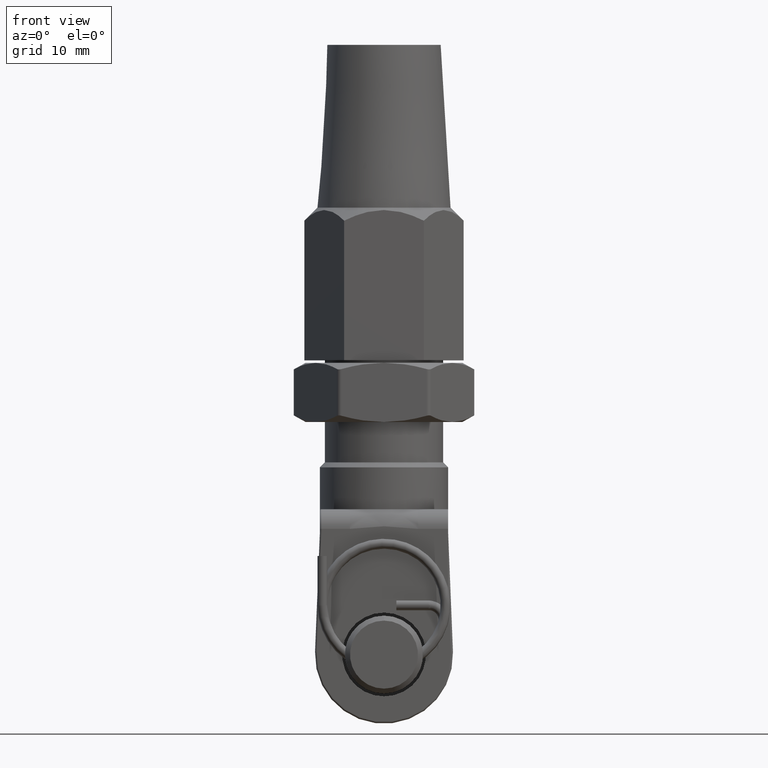
[diagram: clean part render]
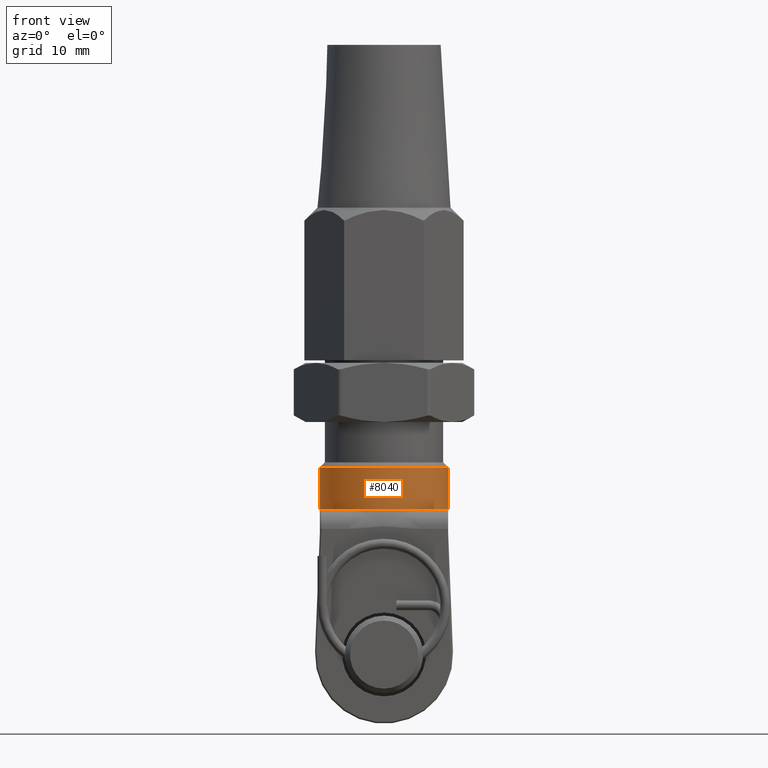
[diagram: same view with one face highlighted and labeled with its STEP entity id]
A machine part, front view. The second image highlights one B-rep face of the part: STEP entity #8040.
In plain terms, the highlighted cylindrical surface (bore or boss wall) has radius 6.5 mm, axis along (0, 0, 1).
Its self-contained STEP definition (entity closure, byte-faithful):
#129 = AXIS2_PLACEMENT_3D ( 'NONE', #4144, #2576, #14718 ) ;
#899 = ORIENTED_EDGE ( 'NONE', *, *, #12541, .T. ) ;
#979 = AXIS2_PLACEMENT_3D ( 'NONE', #13450, #16790, #6507 ) ;
#1039 = ORIENTED_EDGE ( 'NONE', *, *, #13148, .T. ) ;
#1057 = CIRCLE ( 'NONE', #10401, 6.500000000000000900 ) ;
#1387 = ORIENTED_EDGE ( 'NONE', *, *, #22471, .T. ) ;
#1877 = DIRECTION ( 'NONE',  ( 1.000000000000000000, 0.0000000000000000000, 0.0000000000000000000 ) ) ;
#2522 = ORIENTED_EDGE ( 'NONE', *, *, #5515, .T. ) ;
#2576 = DIRECTION ( 'NONE',  ( -0.0000000000000000000, 0.0000000000000000000, 1.000000000000000000 ) ) ;
#3058 = EDGE_CURVE ( 'NONE', #13854, #19759, #6603, .T. ) ;
#3168 = VERTEX_POINT ( 'NONE', #15457 ) ;
#3430 = DIRECTION ( 'NONE',  ( 1.000000000000000000, 0.0000000000000000000, 0.0000000000000000000 ) ) ;
#3501 = FACE_OUTER_BOUND ( 'NONE', #7865, .T. ) ;
#3844 = AXIS2_PLACEMENT_3D ( 'NONE', #13321, #4621, #8292 ) ;
#3858 = EDGE_CURVE ( 'NONE', #13593, #13593, #4410, .T. ) ;
#4031 = VERTEX_POINT ( 'NONE', #16116 ) ;
#4144 = CARTESIAN_POINT ( 'NONE',  ( 0.0000000000000000000, 0.0000000000000000000, -4.250000000000000000 ) ) ;
#4410 = CIRCLE ( 'NONE', #7748, 6.500000000000000900 ) ;
#4552 = EDGE_CURVE ( 'NONE', #7910, #22515, #9595, .T. ) ;
#4621 = DIRECTION ( 'NONE',  ( -0.0000000000000000000, -0.0000000000000000000, 1.000000000000000000 ) ) ;
#4657 = CARTESIAN_POINT ( 'NONE',  ( -6.500000000000000900, 0.0000000000000000000, 0.0000000000000000000 ) ) ;
#5089 = CARTESIAN_POINT ( 'NONE',  ( -6.500000000000000900, 0.0000000000000000000, -4.250000000000000000 ) ) ;
#5515 = EDGE_CURVE ( 'NONE', #3168, #4031, #1057, .T. ) ;
#5643 = CARTESIAN_POINT ( 'NONE',  ( 0.0000000000000000000, 0.0000000000000000000, -4.250000000000000000 ) ) ;
#5845 = DIRECTION ( 'NONE',  ( -0.0000000000000000000, 0.0000000000000000000, 1.000000000000000000 ) ) ;
#6507 = DIRECTION ( 'NONE',  ( 1.000000000000000000, 0.0000000000000000000, 0.0000000000000000000 ) ) ;
#6603 = CIRCLE ( 'NONE', #7311, 6.500000000000000900 ) ;
#6796 = DIRECTION ( 'NONE',  ( -0.0000000000000000000, 0.0000000000000000000, 1.000000000000000000 ) ) ;
#6812 = CIRCLE ( 'NONE', #979, 6.500000000000000900 ) ;
#7184 = AXIS2_PLACEMENT_3D ( 'NONE', #7592, #5845, #8981 ) ;
#7311 = AXIS2_PLACEMENT_3D ( 'NONE', #8611, #16984, #15314 ) ;
#7380 = AXIS2_PLACEMENT_3D ( 'NONE', #7384, #21154, #12720 ) ;
#7384 = CARTESIAN_POINT ( 'NONE',  ( 0.0000000000000000000, 0.0000000000000000000, -4.250000000000000000 ) ) ;
#7553 = DIRECTION ( 'NONE',  ( -0.0000000000000000000, 0.0000000000000000000, 1.000000000000000000 ) ) ;
#7592 = CARTESIAN_POINT ( 'NONE',  ( 0.0000000000000000000, 0.0000000000000000000, -4.250000000000000000 ) ) ;
#7748 = AXIS2_PLACEMENT_3D ( 'NONE', #10643, #12448, #12379 ) ;
#7865 = EDGE_LOOP ( 'NONE', ( #17156 ) ) ;
#7910 = VERTEX_POINT ( 'NONE', #12877 ) ;
#7989 = EDGE_LOOP ( 'NONE', ( #17180, #19079, #2522, #1387, #899, #12123, #1039, #11479 ) ) ;
#8040 = ADVANCED_FACE ( 'NONE', ( #22026, #3501 ), #16569, .T. ) ;
#8292 = DIRECTION ( 'NONE',  ( 1.000000000000000000, 0.0000000000000000000, 0.0000000000000000000 ) ) ;
#8611 = CARTESIAN_POINT ( 'NONE',  ( 0.0000000000000000000, 0.0000000000000000000, -4.250000000000000000 ) ) ;
#8755 = DIRECTION ( 'NONE',  ( -0.0000000000000000000, 0.0000000000000000000, 1.000000000000000000 ) ) ;
#8961 = CIRCLE ( 'NONE', #129, 6.500000000000000900 ) ;
#8981 = DIRECTION ( 'NONE',  ( 1.000000000000000000, 0.0000000000000000000, 0.0000000000000000000 ) ) ;
#9011 = VERTEX_POINT ( 'NONE', #20356 ) ;
#9316 = VERTEX_POINT ( 'NONE', #18210 ) ;
#9397 = CARTESIAN_POINT ( 'NONE',  ( -3.464101615137756600, 5.500000000000000000, -4.250000000000000000 ) ) ;
#9595 = CIRCLE ( 'NONE', #7184, 6.500000000000000900 ) ;
#10401 = AXIS2_PLACEMENT_3D ( 'NONE', #15563, #6796, #3430 ) ;
#10576 = CARTESIAN_POINT ( 'NONE',  ( 0.0000000000000000000, 0.0000000000000000000, -4.250000000000000000 ) ) ;
#10643 = CARTESIAN_POINT ( 'NONE',  ( 0.0000000000000000000, 0.0000000000000000000, 0.0000000000000000000 ) ) ;
#10652 = EDGE_CURVE ( 'NONE', #9316, #13854, #19789, .T. ) ;
#11479 = ORIENTED_EDGE ( 'NONE', *, *, #10652, .T. ) ;
#11884 = CIRCLE ( 'NONE', #7380, 6.500000000000000900 ) ;
#12123 = ORIENTED_EDGE ( 'NONE', *, *, #4552, .T. ) ;
#12379 = DIRECTION ( 'NONE',  ( -1.000000000000000000, 0.0000000000000000000, 0.0000000000000000000 ) ) ;
#12448 = DIRECTION ( 'NONE',  ( 0.0000000000000000000, 0.0000000000000000000, -1.000000000000000000 ) ) ;
#12541 = EDGE_CURVE ( 'NONE', #9011, #7910, #11884, .T. ) ;
#12720 = DIRECTION ( 'NONE',  ( 1.000000000000000000, 0.0000000000000000000, 0.0000000000000000000 ) ) ;
#12877 = CARTESIAN_POINT ( 'NONE',  ( 3.464101615137756600, 5.500000000000000000, -4.250000000000000000 ) ) ;
#12955 = CIRCLE ( 'NONE', #14282, 6.500000000000000900 ) ;
#13062 = AXIS2_PLACEMENT_3D ( 'NONE', #5643, #7553, #1877 ) ;
#13148 = EDGE_CURVE ( 'NONE', #22515, #9316, #12955, .T. ) ;
#13321 = CARTESIAN_POINT ( 'NONE',  ( 0.0000000000000000000, 0.0000000000000000000, -6.500000000000000000 ) ) ;
#13450 = CARTESIAN_POINT ( 'NONE',  ( 0.0000000000000000000, 0.0000000000000000000, -4.250000000000000000 ) ) ;
#13593 = VERTEX_POINT ( 'NONE', #4657 ) ;
#13854 = VERTEX_POINT ( 'NONE', #5089 ) ;
#14282 = AXIS2_PLACEMENT_3D ( 'NONE', #10576, #8755, #20900 ) ;
#14718 = DIRECTION ( 'NONE',  ( 1.000000000000000000, 0.0000000000000000000, 0.0000000000000000000 ) ) ;
#15314 = DIRECTION ( 'NONE',  ( 1.000000000000000000, 0.0000000000000000000, 0.0000000000000000000 ) ) ;
#15457 = CARTESIAN_POINT ( 'NONE',  ( -3.464101615137756600, -5.500000000000000000, -4.250000000000000000 ) ) ;
#15563 = CARTESIAN_POINT ( 'NONE',  ( 0.0000000000000000000, 0.0000000000000000000, -4.250000000000000000 ) ) ;
#16116 = CARTESIAN_POINT ( 'NONE',  ( 3.464101615137756600, -5.500000000000000000, -4.250000000000000000 ) ) ;
#16569 = CYLINDRICAL_SURFACE ( 'NONE', #3844, 6.500000000000000900 ) ;
#16790 = DIRECTION ( 'NONE',  ( -0.0000000000000000000, 0.0000000000000000000, 1.000000000000000000 ) ) ;
#16984 = DIRECTION ( 'NONE',  ( -0.0000000000000000000, 0.0000000000000000000, 1.000000000000000000 ) ) ;
#17156 = ORIENTED_EDGE ( 'NONE', *, *, #3858, .T. ) ;
#17180 = ORIENTED_EDGE ( 'NONE', *, *, #3058, .T. ) ;
#18048 = CARTESIAN_POINT ( 'NONE',  ( -6.299999999999999800, -1.600000000000002500, -4.250000000000000000 ) ) ;
#18210 = CARTESIAN_POINT ( 'NONE',  ( -6.300000000000000700, 1.599999999999998300, -4.250000000000000000 ) ) ;
#19079 = ORIENTED_EDGE ( 'NONE', *, *, #20272, .T. ) ;
#19759 = VERTEX_POINT ( 'NONE', #18048 ) ;
#19789 = CIRCLE ( 'NONE', #13062, 6.500000000000000900 ) ;
#20272 = EDGE_CURVE ( 'NONE', #19759, #3168, #6812, .T. ) ;
#20356 = CARTESIAN_POINT ( 'NONE',  ( 6.500000000000000900, 0.0000000000000000000, -4.250000000000000000 ) ) ;
#20900 = DIRECTION ( 'NONE',  ( 1.000000000000000000, 0.0000000000000000000, 0.0000000000000000000 ) ) ;
#21154 = DIRECTION ( 'NONE',  ( -0.0000000000000000000, 0.0000000000000000000, 1.000000000000000000 ) ) ;
#22026 = FACE_OUTER_BOUND ( 'NONE', #7989, .T. ) ;
#22471 = EDGE_CURVE ( 'NONE', #4031, #9011, #8961, .T. ) ;
#22515 = VERTEX_POINT ( 'NONE', #9397 ) ;